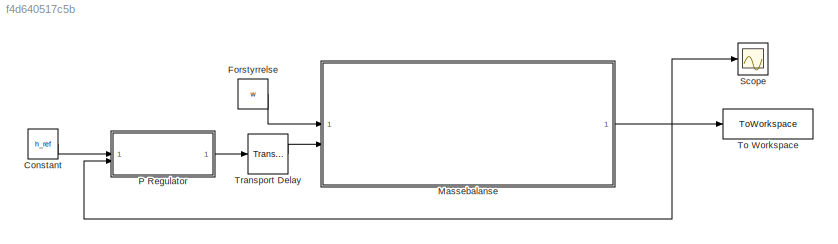
MODEL slx_f4d640517c5b
KIND model
CONFIG AbsTol = auto
CONFIG EnableMultiTasking = off
CONFIG FixedStep = auto
CONFIG MaxStep = auto
CONFIG MinStep = auto
CONFIG RelTol = 1e-3
CONFIG SampleTimeConstraint = Unconstrained
CONFIG SolverName = VariableStepAuto
CONFIG StartTime = 0.0
CONFIG StopTime = T
BLOCK [Constant] Constant
  Value = h_ref
BLOCK [Constant] Forstyrrelse
  Value = w
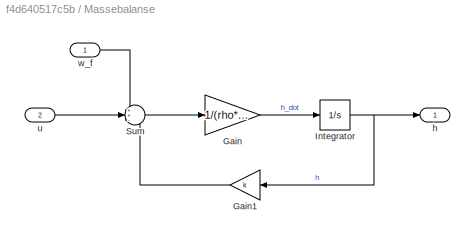
BLOCK [SubSystem] Massebalanse
BLOCK [Gain] Massebalanse/Gain
  Gain = 1/(rho*A)
BLOCK [Gain] Massebalanse/Gain1
  Gain = k
  NameLocation = top
BLOCK [Integrator] Massebalanse/Integrator
BLOCK [Sum] Massebalanse/Sum
  Inputs = ++-
BLOCK [Outport] Massebalanse/h
BLOCK [Inport] Massebalanse/u
  Port = 2
BLOCK [Inport] Massebalanse/w_f
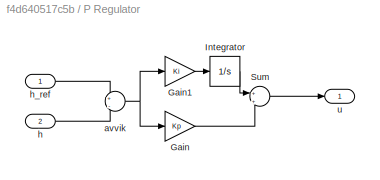
BLOCK [SubSystem] P Regulator
BLOCK [Gain] P Regulator/Gain
  Gain = Kp
BLOCK [Gain] P Regulator/Gain1
  Gain = Ki
BLOCK [Integrator] P Regulator/Integrator
BLOCK [Sum] P Regulator/Sum
  Inputs = +|+
BLOCK [Sum] P Regulator/avvik
  Inputs = +|-
  NameLocation = left
BLOCK [Inport] P Regulator/h
  Port = 2
BLOCK [Inport] P Regulator/h_ref
BLOCK [Outport] P Regulator/u
BLOCK [Scope] Scope
  Floating = off
  NumInputPorts = 1
  ScopeSpecificationString = Simulink.scopes.TimeScopeBlockCfg('CurrentConfiguration', extmgr.ConfigurationSet(extmgr.Configuration('Core','General UI',true),extmgr.Configuration('Core','Source UI',true),extmgr.Configuration('Sources','WiredSimulink',true),extmgr.Configuration('Visuals','Time Domain',true,'SerializedDisplays',{struct('MinYLimReal','-8.5039','MaxYLimReal','6.22535','YLabelReal','','MinYLimMag','0.00000','MaxYL...<+1357ch>
BLOCK [ToWorkspace] To Workspace
  FixptAsFi = on
  MaxDataPoints = inf
  SampleTime = -1
  SaveFormat = Timeseries
  VariableName = h
BLOCK [TransportDelay] Transport Delay
  DelayTime = tau
LINE Constant:1 -> P Regulator:1
LINE Forstyrrelse:1 -> Massebalanse:1
LINE Massebalanse/Gain1:1 -> Massebalanse/Sum:3
LINE Massebalanse/Gain:1 -> Massebalanse/Integrator:1
NET Massebalanse/Integrator:1 -> Massebalanse/Gain1:1, Massebalanse/h:1
LINE Massebalanse/Sum:1 -> Massebalanse/Gain:1
LINE Massebalanse/u:1 -> Massebalanse/Sum:2
LINE Massebalanse/w_f:1 -> Massebalanse/Sum:1
NET Massebalanse:1 -> P Regulator:2, Scope:1, To Workspace:1
LINE P Regulator/Gain1:1 -> P Regulator/Integrator:1
LINE P Regulator/Gain:1 -> P Regulator/Sum:2
LINE P Regulator/Integrator:1 -> P Regulator/Sum:1
LINE P Regulator/Sum:1 -> P Regulator/u:1
NET P Regulator/avvik:1 -> P Regulator/Gain1:1, P Regulator/Gain:1
LINE P Regulator/h:1 -> P Regulator/avvik:2
LINE P Regulator/h_ref:1 -> P Regulator/avvik:1
LINE P Regulator:1 -> Transport Delay:1
LINE Transport Delay:1 -> Massebalanse:2
note: NET lines group one-source signal fan-out (src -> all destinations, sorted); 1:1 wires keep LINE
